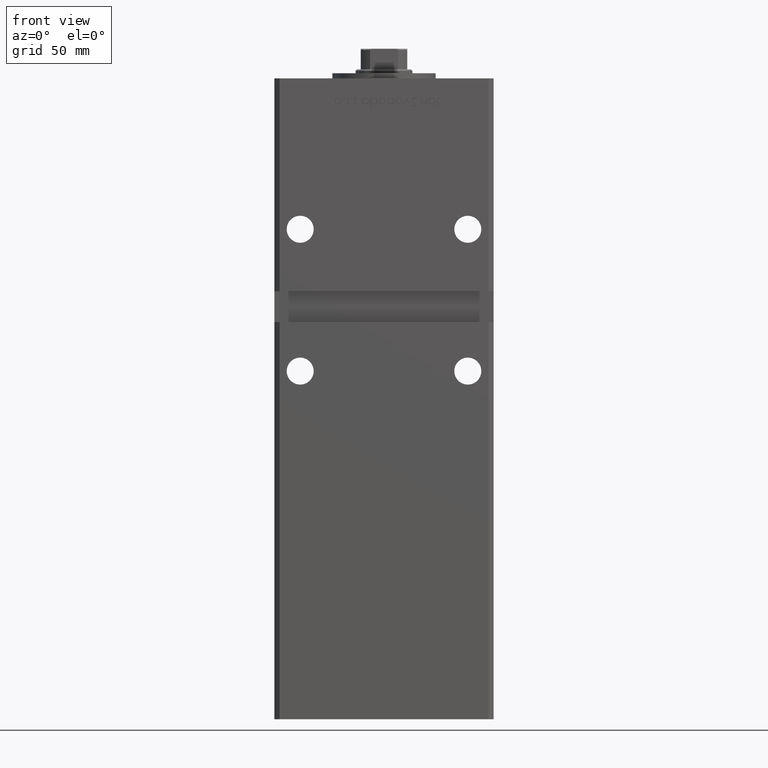
[diagram: clean part render]
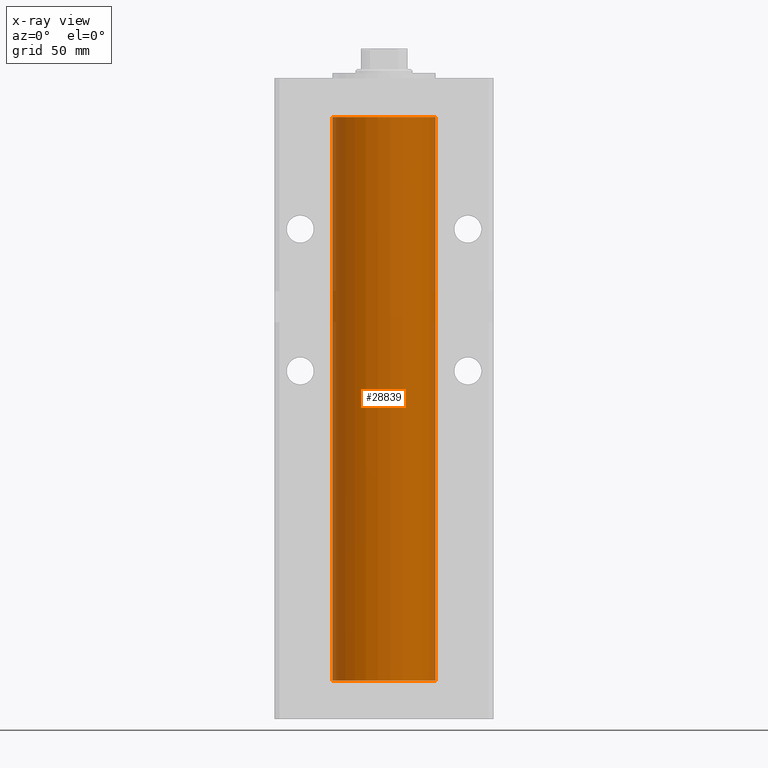
[diagram: x-ray — body ghosted, one internal face saturated and labeled with its STEP entity id]
A machine part, front view, then the same camera in x-ray: the body is ghosted and one INTERNAL B-rep face — a face not visible from any outside direction — is saturated and labeled: STEP entity #28839.
In plain terms, the highlighted cylindrical surface (partial cylindrical patch) has radius 20 mm, axis along (-0, -0, -1).
Its self-contained STEP definition (entity closure, byte-faithful):
#1398 = CIRCLE ( 'NONE', #32277, 20.00000000000000000 ) ;
#3715 = VECTOR ( 'NONE', #29029, 1000.000000000000000 ) ;
#4063 = EDGE_CURVE ( 'NONE', #29479, #12099, #49188, .T. ) ;
#4332 = FACE_OUTER_BOUND ( 'NONE', #41127, .T. ) ;
#6573 = ORIENTED_EDGE ( 'NONE', *, *, #15881, .T. ) ;
#6984 = ORIENTED_EDGE ( 'NONE', *, *, #51311, .F. ) ;
#8122 = VECTOR ( 'NONE', #10580, 1000.000000000000000 ) ;
#10217 = AXIS2_PLACEMENT_3D ( 'NONE', #20463, #36867, #40387 ) ;
#10580 = DIRECTION ( 'NONE',  ( -0.000000000000000000, -0.000000000000000000, -1.000000000000000000 ) ) ;
#12099 = VERTEX_POINT ( 'NONE', #44613 ) ;
#13800 = EDGE_CURVE ( 'NONE', #23826, #25065, #39352, .T. ) ;
#14685 = DIRECTION ( 'NONE',  ( -0.000000000000000000, 0.000000000000000000, 1.000000000000000000 ) ) ;
#15881 = EDGE_CURVE ( 'NONE', #29479, #23826, #1398, .T. ) ;
#18973 = CARTESIAN_POINT ( 'NONE',  ( 0.000000000000000000, 0.000000000000000000, 0.000000000000000000 ) ) ;
#19732 = AXIS2_PLACEMENT_3D ( 'NONE', #18973, #14685, #31335 ) ;
#19857 = CARTESIAN_POINT ( 'NONE',  ( 20.00000000000000000, 2.449293598294706513E-15, 218.5000000000000000 ) ) ;
#20463 = CARTESIAN_POINT ( 'NONE',  ( 0.000000000000000000, 0.000000000000000000, 218.5000000000000000 ) ) ;
#23826 = VERTEX_POINT ( 'NONE', #19857 ) ;
#25065 = VERTEX_POINT ( 'NONE', #41896 ) ;
#28839 = ADVANCED_FACE ( 'NONE', ( #4332 ), #49503, .F. ) ;
#29029 = DIRECTION ( 'NONE',  ( -0.000000000000000000, -0.000000000000000000, -1.000000000000000000 ) ) ;
#29479 = VERTEX_POINT ( 'NONE', #38817 ) ;
#30056 = DIRECTION ( 'NONE',  ( -0.000000000000000000, 0.000000000000000000, 1.000000000000000000 ) ) ;
#30321 = DIRECTION ( 'NONE',  ( 1.000000000000000000, 0.000000000000000000, 0.000000000000000000 ) ) ;
#31335 = DIRECTION ( 'NONE',  ( 1.000000000000000000, 0.000000000000000000, 0.000000000000000000 ) ) ;
#32277 = AXIS2_PLACEMENT_3D ( 'NONE', #34086, #30056, #30321 ) ;
#33362 = ORIENTED_EDGE ( 'NONE', *, *, #13800, .T. ) ;
#34086 = CARTESIAN_POINT ( 'NONE',  ( 0.000000000000000000, 0.000000000000000000, 218.5000000000000000 ) ) ;
#36867 = DIRECTION ( 'NONE',  ( -0.000000000000000000, -0.000000000000000000, -1.000000000000000000 ) ) ;
#37084 = CARTESIAN_POINT ( 'NONE',  ( -20.00000000000000000, 0.000000000000000000, 218.5000000000000000 ) ) ;
#38817 = CARTESIAN_POINT ( 'NONE',  ( -20.00000000000000000, 0.000000000000000000, 218.5000000000000000 ) ) ;
#39352 = LINE ( 'NONE', #47422, #8122 ) ;
#40387 = DIRECTION ( 'NONE',  ( -1.000000000000000000, 0.000000000000000000, 0.000000000000000000 ) ) ;
#41127 = EDGE_LOOP ( 'NONE', ( #6573, #33362, #6984, #41360 ) ) ;
#41360 = ORIENTED_EDGE ( 'NONE', *, *, #4063, .F. ) ;
#41896 = CARTESIAN_POINT ( 'NONE',  ( 20.00000000000000000, 2.449293598294706513E-15, 0.000000000000000000 ) ) ;
#44613 = CARTESIAN_POINT ( 'NONE',  ( -20.00000000000000000, 0.000000000000000000, 0.000000000000000000 ) ) ;
#45438 = CIRCLE ( 'NONE', #19732, 20.00000000000000000 ) ;
#47422 = CARTESIAN_POINT ( 'NONE',  ( 20.00000000000000000, 2.449293598294706513E-15, 218.5000000000000000 ) ) ;
#49188 = LINE ( 'NONE', #37084, #3715 ) ;
#49503 = CYLINDRICAL_SURFACE ( 'NONE', #10217, 20.00000000000000000 ) ;
#51311 = EDGE_CURVE ( 'NONE', #12099, #25065, #45438, .T. ) ;